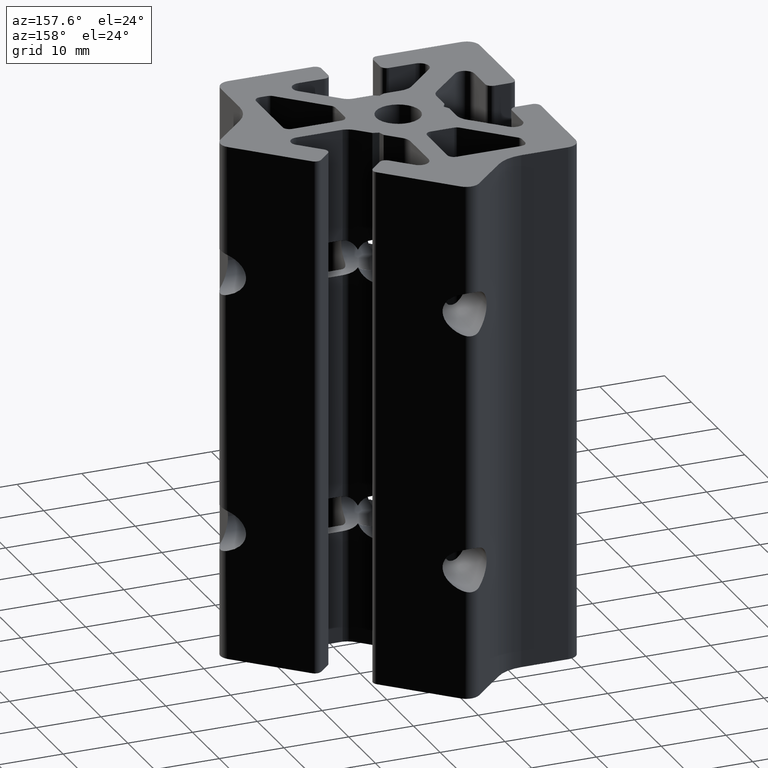
[diagram: clean part render]
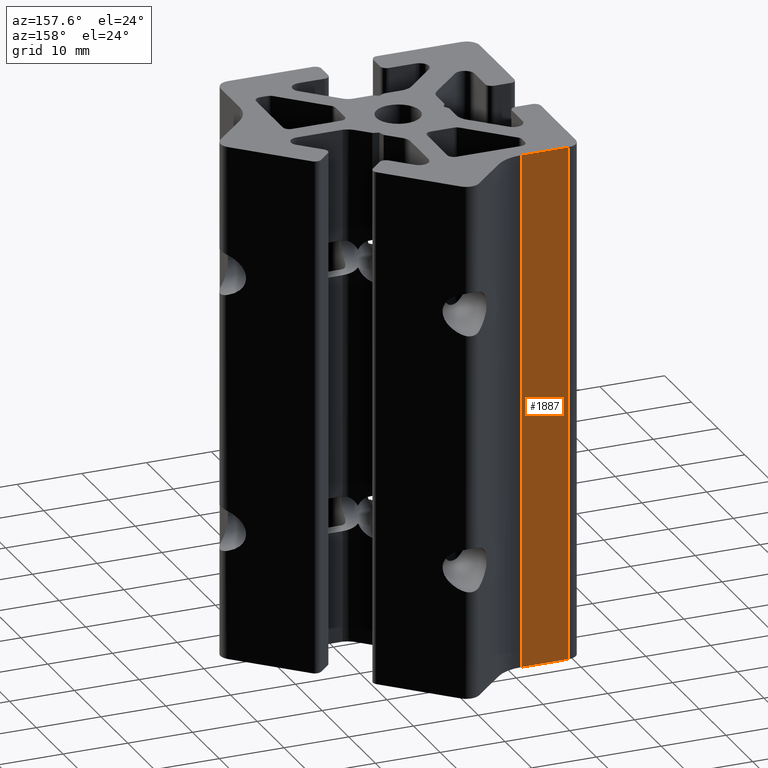
[diagram: same view with one face highlighted and labeled with its STEP entity id]
A machine part, auxiliary view. The second image highlights one B-rep face of the part: STEP entity #1887.
In plain terms, the highlighted planar face has unit normal (0, -1, 0).
Its self-contained STEP definition (entity closure, byte-faithful):
#1830=CARTESIAN_POINT('',(-10.769525039279415,19.999987929814324,0.0));
#1831=VERTEX_POINT('',#1830);
#1839=CARTESIAN_POINT('',(-10.769525039279415,19.999987929814324,79.999715220555601));
#1840=VERTEX_POINT('',#1839);
#1841=CARTESIAN_POINT('',(-10.769525039279415,19.999987929814324,79.999715220555601));
#1842=DIRECTION('',(0.0,0.0,-1.0));
#1843=VECTOR('',#1842,79.999715220555601);
#1844=LINE('',#1841,#1843);
#1845=EDGE_CURVE('',#1840,#1831,#1844,.T.);
#1857=CARTESIAN_POINT('',(-10.769525039279415,19.999987929814324,79.999715220555601));
#1858=DIRECTION('',(0.0,-1.0,0.0));
#1859=DIRECTION('',(-1.0,0.0,0.0));
#1860=AXIS2_PLACEMENT_3D('',#1857,#1858,#1859);
#1861=PLANE('',#1860);
#1862=ORIENTED_EDGE('',*,*,#1845,.T.);
#1863=CARTESIAN_POINT('',(-17.999969303293256,19.999987929814324,0.0));
#1864=VERTEX_POINT('',#1863);
#1865=CARTESIAN_POINT('',(-10.769525039279415,19.999987929814324,0.0));
#1866=DIRECTION('',(-1.0,0.0,0.0));
#1867=VECTOR('',#1866,7.230444264013840);
#1868=LINE('',#1865,#1867);
#1869=EDGE_CURVE('',#1831,#1864,#1868,.T.);
#1870=ORIENTED_EDGE('',*,*,#1869,.T.);
#1871=CARTESIAN_POINT('',(-17.999969303293256,19.999987929814324,79.999715220555601));
#1872=VERTEX_POINT('',#1871);
#1873=CARTESIAN_POINT('',(-17.999969303293256,19.999987929814324,79.999715220555601));
#1874=DIRECTION('',(0.0,0.0,-1.0));
#1875=VECTOR('',#1874,79.999715220555601);
#1876=LINE('',#1873,#1875);
#1877=EDGE_CURVE('',#1872,#1864,#1876,.T.);
#1878=ORIENTED_EDGE('',*,*,#1877,.F.);
#1879=CARTESIAN_POINT('',(-10.769525039279415,19.999987929814324,79.999715220555601));
#1880=DIRECTION('',(-1.0,0.0,0.0));
#1881=VECTOR('',#1880,7.230444264013840);
#1882=LINE('',#1879,#1881);
#1883=EDGE_CURVE('',#1840,#1872,#1882,.T.);
#1884=ORIENTED_EDGE('',*,*,#1883,.F.);
#1885=EDGE_LOOP('',(#1862,#1870,#1878,#1884));
#1886=FACE_OUTER_BOUND('',#1885,.T.);
#1887=ADVANCED_FACE('',(#1886),#1861,.F.);